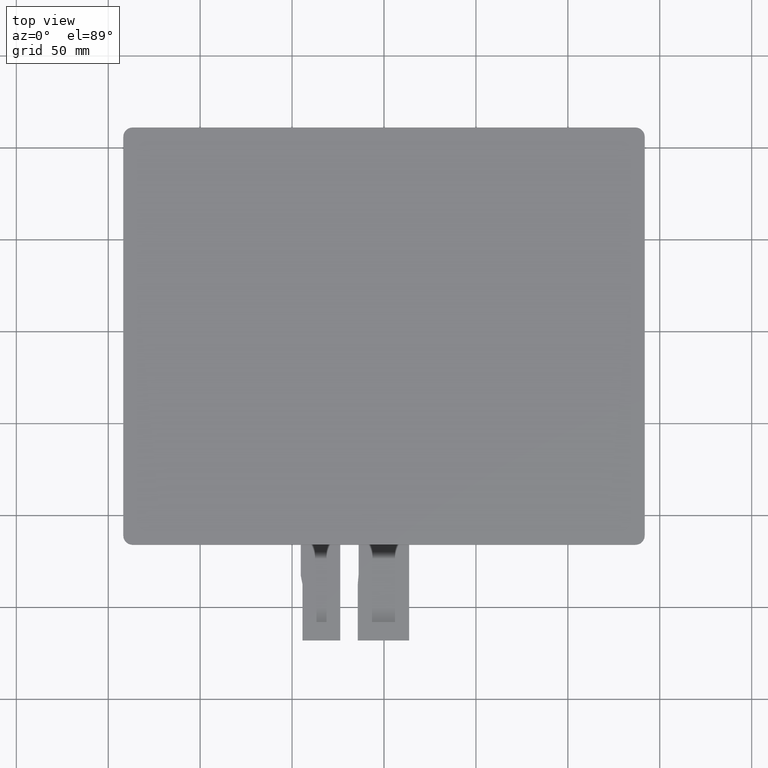
[diagram: clean part render]
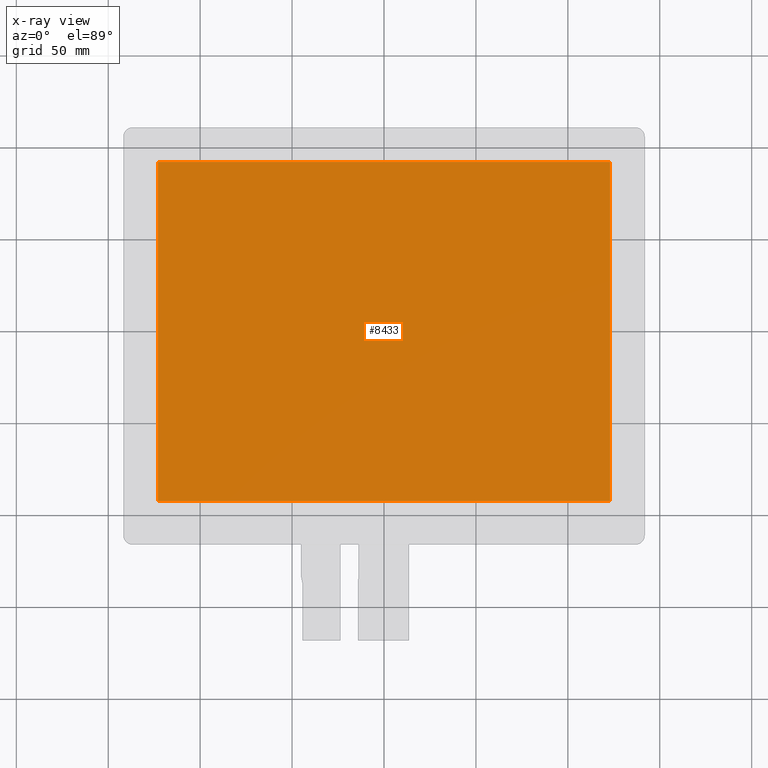
[diagram: x-ray — body ghosted, one internal face saturated and labeled with its STEP entity id]
A machine part, top view, then the same camera in x-ray: the body is ghosted and one INTERNAL B-rep face — a face not visible from any outside direction — is saturated and labeled: STEP entity #8433.
In plain terms, the highlighted planar face has unit normal (0, 0, -1).
Its self-contained STEP definition (entity closure, byte-faithful):
#66=FACE_OUTER_BOUND('',#491,.T.);
#491=EDGE_LOOP('',(#5503,#5504,#5505,#5506));
#920=LINE('',#11436,#2165);
#921=LINE('',#11438,#2166);
#922=LINE('',#11440,#2167);
#923=LINE('',#11441,#2168);
#2165=VECTOR('',#9319,10.);
#2166=VECTOR('',#9320,10.);
#2167=VECTOR('',#9321,10.);
#2168=VECTOR('',#9322,10.);
#3410=VERTEX_POINT('',#11434);
#3411=VERTEX_POINT('',#11435);
#3412=VERTEX_POINT('',#11437);
#3413=VERTEX_POINT('',#11439);
#4248=EDGE_CURVE('',#3410,#3411,#920,.T.);
#4249=EDGE_CURVE('',#3412,#3410,#921,.T.);
#4250=EDGE_CURVE('',#3413,#3412,#922,.T.);
#4251=EDGE_CURVE('',#3411,#3413,#923,.T.);
#5503=ORIENTED_EDGE('',*,*,#4248,.F.);
#5504=ORIENTED_EDGE('',*,*,#4249,.F.);
#5505=ORIENTED_EDGE('',*,*,#4250,.F.);
#5506=ORIENTED_EDGE('',*,*,#4251,.F.);
#8013=PLANE('',#8880);
#8433=ADVANCED_FACE('',(#66),#8013,.F.);
#8880=AXIS2_PLACEMENT_3D('',#11433,#9317,#9318);
#9317=DIRECTION('center_axis',(0.,0.,-1.));
#9318=DIRECTION('ref_axis',(-1.,0.,0.));
#9319=DIRECTION('',(-1.,0.,0.));
#9320=DIRECTION('',(0.,-1.,0.));
#9321=DIRECTION('',(1.,0.,0.));
#9322=DIRECTION('',(0.,1.,0.));
#11433=CARTESIAN_POINT('Origin',(0.,0.,-0.1));
#11434=CARTESIAN_POINT('',(123.,-92.25,-0.1));
#11435=CARTESIAN_POINT('',(-123.,-92.25,-0.1));
#11436=CARTESIAN_POINT('',(-123.,-92.25,-0.1));
#11437=CARTESIAN_POINT('',(123.,92.25,-0.1));
#11438=CARTESIAN_POINT('',(123.,-92.25,-0.1));
#11439=CARTESIAN_POINT('',(-123.,92.25,-0.1));
#11440=CARTESIAN_POINT('',(123.,92.25,-0.1));
#11441=CARTESIAN_POINT('',(-123.,92.25,-0.1));